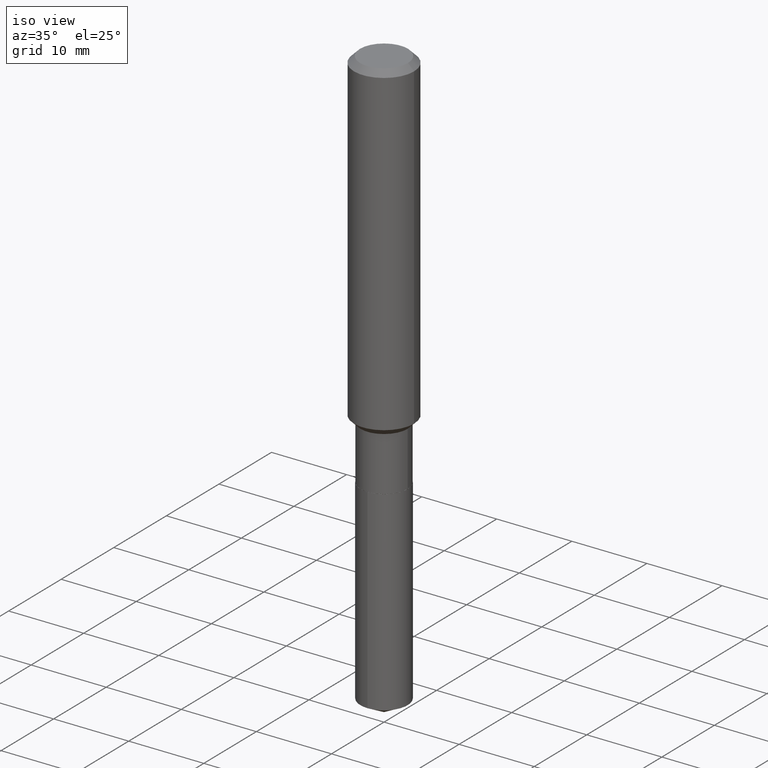
[diagram: clean part render]
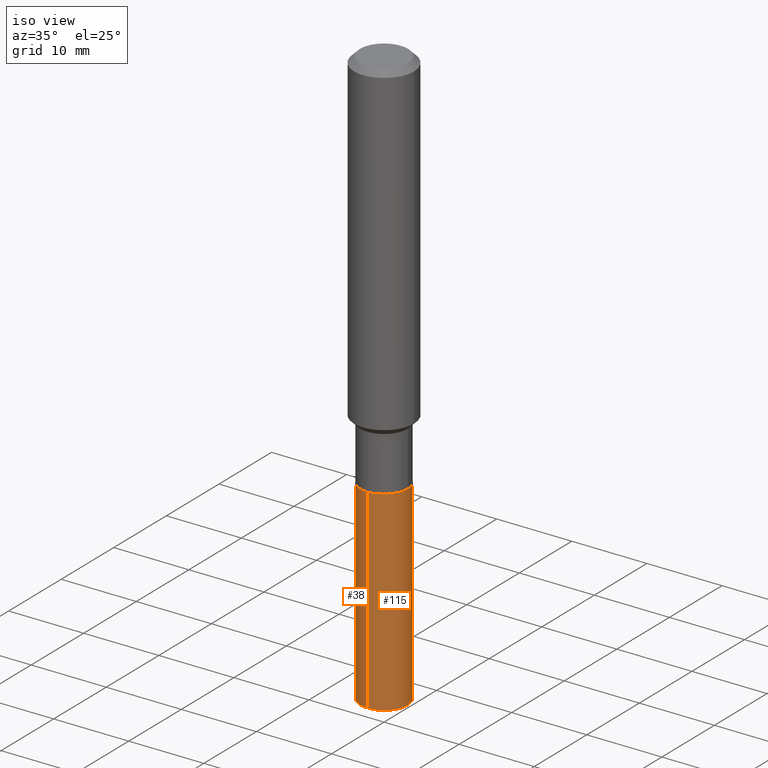
[diagram: same view with one multi-face feature highlighted, each face labeled with its STEP entity id]
A machine part, iso view. The highlighted faces form ONE feature: a constant-radius fillet chain: 2 tangent blend faces with common blend radius 3.1496 mm. The faces share edges in the B-rep.
Their STEP definitions:
[1] entity #115 (Cylinder):
#2 = AXIS2_PLACEMENT_3D ( 'NONE', #466, #470, #227 ) ;
#18 = ORIENTED_EDGE ( 'NONE', *, *, #432, .F. ) ;
#19 = DIRECTION ( 'NONE',  ( -6.982962677686265922E-15, -1.000000000000000000, 4.406206441393973340E-15 ) ) ;
#22 = CARTESIAN_POINT ( 'NONE',  ( 7.444779400821120837E-29, -1.062883761907277980E-14, -3.044268030473976872 ) ) ;
#30 = ORIENTED_EDGE ( 'NONE', *, *, #149, .F. ) ;
#45 = CARTESIAN_POINT ( 'NONE',  ( 8.810729923425982785E-16, 0.1239999999999893548, -3.044268030473977760 ) ) ;
#58 = CARTESIAN_POINT ( 'NONE',  ( 4.938868800971501707E-29, -7.051395711927616472E-15, -2.019600000000000062 ) ) ;
#60 = CIRCLE ( 'NONE', #302, 0.1239999999999999991 ) ;
#61 = LINE ( 'NONE', #205, #179 ) ;
#69 = EDGE_LOOP ( 'NONE', ( #360, #425, #18, #30 ) ) ;
#78 = EDGE_CURVE ( 'NONE', #176, #297, #61, .T. ) ;
#115 = ADVANCED_FACE ( 'NONE', ( #436 ), #281, .T. ) ;
#149 = EDGE_CURVE ( 'NONE', #200, #486, #358, .T. ) ;
#175 = CARTESIAN_POINT ( 'NONE',  ( -8.658873720330475277E-16, -0.1240000000000070490, -2.019599999999999618 ) ) ;
#176 = VERTEX_POINT ( 'NONE', #45 ) ;
#179 = VECTOR ( 'NONE', #224, 39.37007874015748143 ) ;
#183 = VECTOR ( 'NONE', #369, 39.37007874015748143 ) ;
#200 = VERTEX_POINT ( 'NONE', #395 ) ;
#202 = CIRCLE ( 'NONE', #283, 0.1239999999999999991 ) ;
#205 = CARTESIAN_POINT ( 'NONE',  ( 8.810729923425734294E-16, 0.1239999999999929492, -2.019600000000000506 ) ) ;
#210 = DIRECTION ( 'NONE',  ( -6.982962677686265922E-15, -1.000000000000000000, 4.406206441393973340E-15 ) ) ;
#224 = DIRECTION ( 'NONE',  ( -2.445582886674495597E-29, 3.491317969089325236E-15, 1.000000000000000000 ) ) ;
#227 = DIRECTION ( 'NONE',  ( -6.982962677686265922E-15, -1.000000000000000000, 4.406206441393973340E-15 ) ) ;
#252 = DIRECTION ( 'NONE',  ( -2.445582886674495597E-29, 3.491317969089325236E-15, 1.000000000000000000 ) ) ;
#275 = EDGE_CURVE ( 'NONE', #200, #176, #60, .T. ) ;
#281 = CYLINDRICAL_SURFACE ( 'NONE', #2, 0.1239999999999999991 ) ;
#283 = AXIS2_PLACEMENT_3D ( 'NONE', #58, #367, #19 ) ;
#297 = VERTEX_POINT ( 'NONE', #384 ) ;
#302 = AXIS2_PLACEMENT_3D ( 'NONE', #22, #252, #210 ) ;
#358 = LINE ( 'NONE', #362, #183 ) ;
#360 = ORIENTED_EDGE ( 'NONE', *, *, #275, .T. ) ;
#362 = CARTESIAN_POINT ( 'NONE',  ( -8.658873720330475277E-16, -0.1240000000000070490, -2.019599999999999618 ) ) ;
#367 = DIRECTION ( 'NONE',  ( -2.445582886674495597E-29, 3.491317969089325236E-15, 1.000000000000000000 ) ) ;
#369 = DIRECTION ( 'NONE',  ( -2.445582886674495597E-29, 3.491317969089325236E-15, 1.000000000000000000 ) ) ;
#384 = CARTESIAN_POINT ( 'NONE',  ( 8.810729923425987715E-16, 0.1239999999999929492, -2.019600000000000506 ) ) ;
#395 = CARTESIAN_POINT ( 'NONE',  ( -8.658873720330223828E-16, -0.1240000000000106156, -3.044268030473976427 ) ) ;
#425 = ORIENTED_EDGE ( 'NONE', *, *, #78, .T. ) ;
#432 = EDGE_CURVE ( 'NONE', #486, #297, #202, .T. ) ;
#436 = FACE_OUTER_BOUND ( 'NONE', #69, .T. ) ;
#466 = CARTESIAN_POINT ( 'NONE',  ( 4.938868800971501707E-29, -7.051395711927616472E-15, -2.019600000000000062 ) ) ;
#470 = DIRECTION ( 'NONE',  ( -2.445582886674495597E-29, 3.491317969089325236E-15, 1.000000000000000000 ) ) ;
#486 = VERTEX_POINT ( 'NONE', #175 ) ;
[2] entity #38 (Cylinder):
#38 = ADVANCED_FACE ( 'NONE', ( #117 ), #84, .T. ) ;
#45 = CARTESIAN_POINT ( 'NONE',  ( 8.810729923425982785E-16, 0.1239999999999893548, -3.044268030473977760 ) ) ;
#61 = LINE ( 'NONE', #205, #179 ) ;
#66 = ORIENTED_EDGE ( 'NONE', *, *, #149, .T. ) ;
#78 = EDGE_CURVE ( 'NONE', #176, #297, #61, .T. ) ;
#80 = AXIS2_PLACEMENT_3D ( 'NONE', #118, #242, #203 ) ;
#84 = CYLINDRICAL_SURFACE ( 'NONE', #300, 0.1239999999999999991 ) ;
#88 = CIRCLE ( 'NONE', #291, 0.1239999999999999991 ) ;
#109 = ORIENTED_EDGE ( 'NONE', *, *, #78, .F. ) ;
#110 = CIRCLE ( 'NONE', #80, 0.1239999999999999991 ) ;
#117 = FACE_OUTER_BOUND ( 'NONE', #174, .T. ) ;
#118 = CARTESIAN_POINT ( 'NONE',  ( 4.938868800971501707E-29, -7.051395711927616472E-15, -2.019600000000000062 ) ) ;
#149 = EDGE_CURVE ( 'NONE', #200, #486, #358, .T. ) ;
#151 = ORIENTED_EDGE ( 'NONE', *, *, #178, .T. ) ;
#155 = DIRECTION ( 'NONE',  ( -2.445582886674495597E-29, 3.491317969089325236E-15, 1.000000000000000000 ) ) ;
#156 = CARTESIAN_POINT ( 'NONE',  ( 4.938868800971501707E-29, -7.051395711927616472E-15, -2.019600000000000062 ) ) ;
#164 = DIRECTION ( 'NONE',  ( -6.982962677686265922E-15, -1.000000000000000000, 4.406206441393973340E-15 ) ) ;
#174 = EDGE_LOOP ( 'NONE', ( #109, #151, #66, #382 ) ) ;
#175 = CARTESIAN_POINT ( 'NONE',  ( -8.658873720330475277E-16, -0.1240000000000070490, -2.019599999999999618 ) ) ;
#176 = VERTEX_POINT ( 'NONE', #45 ) ;
#178 = EDGE_CURVE ( 'NONE', #176, #200, #88, .T. ) ;
#179 = VECTOR ( 'NONE', #224, 39.37007874015748143 ) ;
#183 = VECTOR ( 'NONE', #369, 39.37007874015748143 ) ;
#200 = VERTEX_POINT ( 'NONE', #395 ) ;
#203 = DIRECTION ( 'NONE',  ( -6.982962677686265922E-15, -1.000000000000000000, 4.406206441393973340E-15 ) ) ;
#205 = CARTESIAN_POINT ( 'NONE',  ( 8.810729923425734294E-16, 0.1239999999999929492, -2.019600000000000506 ) ) ;
#224 = DIRECTION ( 'NONE',  ( -2.445582886674495597E-29, 3.491317969089325236E-15, 1.000000000000000000 ) ) ;
#242 = DIRECTION ( 'NONE',  ( -2.445582886674495597E-29, 3.491317969089325236E-15, 1.000000000000000000 ) ) ;
#291 = AXIS2_PLACEMENT_3D ( 'NONE', #396, #155, #164 ) ;
#297 = VERTEX_POINT ( 'NONE', #384 ) ;
#300 = AXIS2_PLACEMENT_3D ( 'NONE', #156, #468, #459 ) ;
#358 = LINE ( 'NONE', #362, #183 ) ;
#362 = CARTESIAN_POINT ( 'NONE',  ( -8.658873720330475277E-16, -0.1240000000000070490, -2.019599999999999618 ) ) ;
#369 = DIRECTION ( 'NONE',  ( -2.445582886674495597E-29, 3.491317969089325236E-15, 1.000000000000000000 ) ) ;
#382 = ORIENTED_EDGE ( 'NONE', *, *, #397, .F. ) ;
#384 = CARTESIAN_POINT ( 'NONE',  ( 8.810729923425987715E-16, 0.1239999999999929492, -2.019600000000000506 ) ) ;
#395 = CARTESIAN_POINT ( 'NONE',  ( -8.658873720330223828E-16, -0.1240000000000106156, -3.044268030473976427 ) ) ;
#396 = CARTESIAN_POINT ( 'NONE',  ( 7.444779400821120837E-29, -1.062883761907277980E-14, -3.044268030473976872 ) ) ;
#397 = EDGE_CURVE ( 'NONE', #297, #486, #110, .T. ) ;
#459 = DIRECTION ( 'NONE',  ( -6.982962677686265922E-15, -1.000000000000000000, 4.406206441393973340E-15 ) ) ;
#468 = DIRECTION ( 'NONE',  ( -2.445582886674495597E-29, 3.491317969089325236E-15, 1.000000000000000000 ) ) ;
#486 = VERTEX_POINT ( 'NONE', #175 ) ;